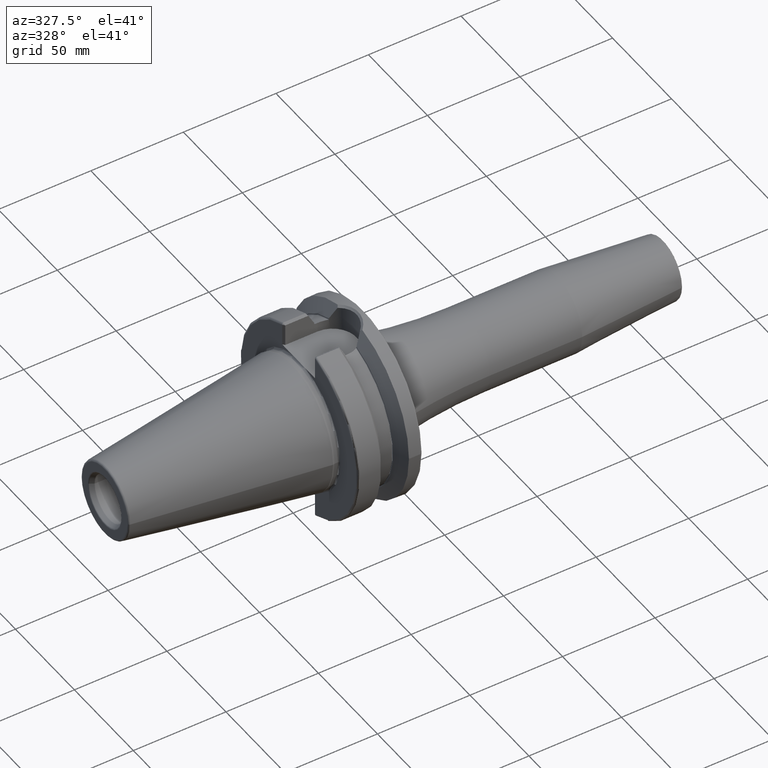
[diagram: clean part render]
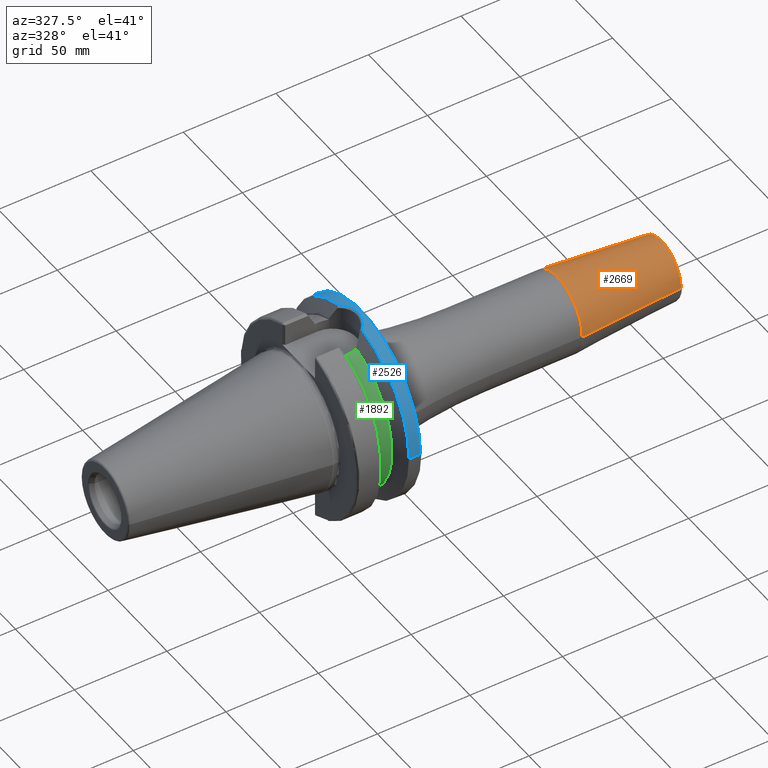
[diagram: same view with three faces highlighted in distinct colors, each labeled with its STEP entity id]
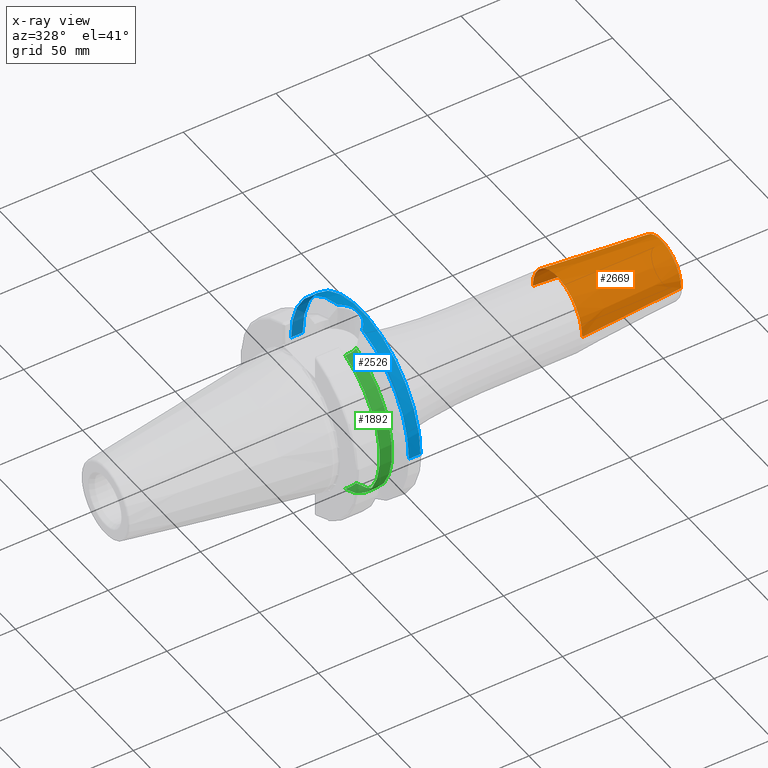
[diagram: x-ray of the same camera — body ghosted, the three highlighted faces saturated]
A machine part, auxiliary view with three faces highlighted in distinct colors.
The next image is the same camera in x-ray (body ghosted, the three faces saturated) — at least one of them is partly hidden behind the body in this view.
Their STEP definitions:

[orange] entity #2669 — the highlighted conical surface has half-angle 4.5 deg.
#897=CARTESIAN_POINT('',(1.428220786872E2,0.E0,0.E0));
#898=DIRECTION('',(1.E0,0.E0,0.E0));
#899=DIRECTION('',(0.E0,1.E0,0.E0));
#900=AXIS2_PLACEMENT_3D('',#897,#898,#899);
#902=CARTESIAN_POINT('',(1.990784590957E2,0.E0,0.E0));
#903=DIRECTION('',(-1.E0,0.E0,0.E0));
#904=DIRECTION('',(0.E0,-1.E0,0.E0));
#905=AXIS2_PLACEMENT_3D('',#902,#903,#904);
#922=DIRECTION('',(-9.969173337331E-1,7.845909572785E-2,3.371674713567E-14));
#923=VECTOR('',#922,5.643033630266E1);
#924=CARTESIAN_POINT('',(1.990784590957E2,1.657252684207E1,
-1.900075621619E-12));
#925=LINE('',#924,#923);
#926=DIRECTION('',(-9.969173337331E-1,-7.845909572785E-2,-3.370775574324E-14));
#927=VECTOR('',#926,5.643033630266E1);
#928=CARTESIAN_POINT('',(1.990784590957E2,-1.657252684207E1,
1.899568234321E-12));
#929=LINE('',#928,#927);
#1411=CARTESIAN_POINT('',(1.428220786872E2,2.1E1,0.E0));
#1412=CARTESIAN_POINT('',(1.428220786872E2,-2.1E1,0.E0));
#1413=VERTEX_POINT('',#1411);
#1414=VERTEX_POINT('',#1412);
#1423=CARTESIAN_POINT('',(1.990784590957E2,1.657252684207E1,0.E0));
#1424=CARTESIAN_POINT('',(1.990784590957E2,-1.657252684207E1,0.E0));
#1425=VERTEX_POINT('',#1423);
#1426=VERTEX_POINT('',#1424);
#2655=CARTESIAN_POINT('',(1.709502688915E2,0.E0,0.E0));
#2656=DIRECTION('',(-1.E0,0.E0,0.E0));
#2657=DIRECTION('',(0.E0,1.E0,0.E0));
#2658=AXIS2_PLACEMENT_3D('',#2655,#2656,#2657);
#2659=CONICAL_SURFACE('',#2658,1.878626342104E1,4.5E0);
#2661=ORIENTED_EDGE('',*,*,#2660,.F.);
#2663=ORIENTED_EDGE('',*,*,#2662,.T.);
#2664=ORIENTED_EDGE('',*,*,#2649,.F.);
#2666=ORIENTED_EDGE('',*,*,#2665,.F.);
#2667=EDGE_LOOP('',(#2661,#2663,#2664,#2666));
#2668=FACE_OUTER_BOUND('',#2667,.F.);
#2669=ADVANCED_FACE('',(#2668),#2659,.T.);
#901=CIRCLE('',#900,2.1E1);
#906=CIRCLE('',#905,1.657252684207E1);
#2649=EDGE_CURVE('',#1413,#1414,#901,.T.);
#2660=EDGE_CURVE('',#1426,#1425,#906,.T.);
#2662=EDGE_CURVE('',#1426,#1414,#929,.T.);
#2665=EDGE_CURVE('',#1425,#1413,#925,.T.);

[blue] entity #2526 — the highlighted cylindrical surface (partial cylindrical patch) has radius 49.9875 mm, axis along (1, 0, 0).
#250=DIRECTION('',(-1.E0,0.E0,0.E0));
#251=VECTOR('',#250,6.269331763825E0);
#252=CARTESIAN_POINT('',(3.7E1,-4.99875E1,0.E0));
#253=LINE('',#252,#251);
#259=DIRECTION('',(-1.E0,0.E0,0.E0));
#260=VECTOR('',#259,6.269331763825E0);
#261=CARTESIAN_POINT('',(3.7E1,4.99875E1,0.E0));
#262=LINE('',#261,#260);
#782=CARTESIAN_POINT('',(3.073066823617E1,0.E0,0.E0));
#783=DIRECTION('',(1.E0,0.E0,0.E0));
#784=DIRECTION('',(0.E0,1.E0,0.E0));
#785=AXIS2_PLACEMENT_3D('',#782,#783,#784);
#787=CARTESIAN_POINT('',(3.7E1,0.E0,0.E0));
#788=DIRECTION('',(1.E0,0.E0,0.E0));
#789=DIRECTION('',(0.E0,1.E0,0.E0));
#790=AXIS2_PLACEMENT_3D('',#787,#788,#789);
#792=CARTESIAN_POINT('',(3.073066823617E1,0.E0,0.E0));
#793=DIRECTION('',(1.E0,0.E0,0.E0));
#794=DIRECTION('',(0.E0,-2.094051574285E-1,9.778289625708E-1));
#795=AXIS2_PLACEMENT_3D('',#792,#793,#794);
#797=CARTESIAN_POINT('',(3.073066823617E1,1.046765017837E1,4.887922315251E1));
#798=CARTESIAN_POINT('',(3.093824742254E1,1.027394156657E1,4.892071033431E1));
#799=CARTESIAN_POINT('',(3.161047010606E1,9.607576099682E0,4.905940702404E1));
#800=CARTESIAN_POINT('',(3.263517600486E1,8.361597131920E0,4.929233531601E1));
#801=CARTESIAN_POINT('',(3.366872655698E1,6.670162125591E0,4.955104267859E1));
#802=CARTESIAN_POINT('',(3.445683207094E1,4.858888640768E0,4.976248055972E1));
#803=CARTESIAN_POINT('',(3.498881883781E1,2.963029384908E0,4.991203919913E1));
#804=CARTESIAN_POINT('',(3.525852360168E1,1.017396108424E0,4.998994610559E1));
#805=CARTESIAN_POINT('',(3.526344205362E1,-9.445244441774E-1,4.999137984430E1));
#806=CARTESIAN_POINT('',(3.500362395847E1,-2.891033001447E0,4.991627963537E1));
#807=CARTESIAN_POINT('',(3.448138663547E1,-4.789289725446E0,4.976926316974E1));
#808=CARTESIAN_POINT('',(3.370271475997E1,-6.604336733999E0,4.955990954998E1));
#809=CARTESIAN_POINT('',(3.267803854162E1,-8.300983390707E0,4.930264159969E1));
#810=CARTESIAN_POINT('',(3.164433381328E1,-9.571446946705E0,4.906668367984E1));
#811=CARTESIAN_POINT('',(3.095620205386E1,-1.025716232725E1,4.892430305409E1));
#812=CARTESIAN_POINT('',(3.073066823617E1,-1.046764030696E1,4.887922526651E1));
#1244=CARTESIAN_POINT('',(3.073066823617E1,4.99875E1,0.E0));
#1245=CARTESIAN_POINT('',(3.073066823617E1,1.046765017837E1,4.887922315251E1));
#1246=VERTEX_POINT('',#1244);
#1247=VERTEX_POINT('',#1245);
#1248=CARTESIAN_POINT('',(3.073066823617E1,-4.99875E1,-1.224340637448E-14));
#1250=VERTEX_POINT('',#1248);
#1252=CARTESIAN_POINT('',(3.7E1,4.99875E1,0.E0));
#1253=VERTEX_POINT('',#1252);
#1254=CARTESIAN_POINT('',(3.7E1,-4.99875E1,0.E0));
#1255=VERTEX_POINT('',#1254);
#1256=CARTESIAN_POINT('',(3.073066823617E1,-1.046764030696E1,4.887922526651E1));
#1257=VERTEX_POINT('',#1256);
#2511=CARTESIAN_POINT('',(-1.0879E2,0.E0,0.E0));
#2512=DIRECTION('',(1.E0,0.E0,0.E0));
#2513=DIRECTION('',(0.E0,-1.E0,0.E0));
#2514=AXIS2_PLACEMENT_3D('',#2511,#2512,#2513);
#2515=CYLINDRICAL_SURFACE('',#2514,4.99875E1);
#2516=ORIENTED_EDGE('',*,*,#2413,.F.);
#2517=ORIENTED_EDGE('',*,*,#1783,.F.);
#2519=ORIENTED_EDGE('',*,*,#2518,.T.);
#2520=ORIENTED_EDGE('',*,*,#1779,.T.);
#2521=ORIENTED_EDGE('',*,*,#2426,.F.);
#2523=ORIENTED_EDGE('',*,*,#2522,.F.);
#2524=EDGE_LOOP('',(#2516,#2517,#2519,#2520,#2521,#2523));
#2525=FACE_OUTER_BOUND('',#2524,.F.);
#2526=ADVANCED_FACE('',(#2525),#2515,.T.);
#786=CIRCLE('',#785,4.99875E1);
#791=CIRCLE('',#790,4.99875E1);
#796=CIRCLE('',#795,4.99875E1);
#813=B_SPLINE_CURVE_WITH_KNOTS('',3,(#797,#798,#799,#800,#801,#802,#803,#804,
#805,#806,#807,#808,#809,#810,#811,#812),.UNSPECIFIED.,.F.,.F.,(4,1,1,1,1,1,1,1,
1,1,1,1,1,4),(0.E0,3.613843176766E-2,1.201923969829E-1,2.042463621981E-1,
2.883003274134E-1,3.723542926286E-1,4.564082578438E-1,5.404622230591E-1,
6.245161882743E-1,7.085701534895E-1,7.926241187048E-1,8.766780839200E-1,
9.607320491352E-1,1.E0),.UNSPECIFIED.);
#1779=EDGE_CURVE('',#1255,#1250,#253,.T.);
#1783=EDGE_CURVE('',#1253,#1246,#262,.T.);
#2413=EDGE_CURVE('',#1246,#1247,#786,.T.);
#2426=EDGE_CURVE('',#1257,#1250,#796,.T.);
#2518=EDGE_CURVE('',#1253,#1255,#791,.T.);
#2522=EDGE_CURVE('',#1247,#1257,#813,.T.);

[green] entity #1892 — the highlighted cylindrical surface (partial cylindrical patch) has radius 42.375 mm, axis along (1, 0, 0).
#308=DIRECTION('',(1.E0,0.E0,0.E0));
#309=VECTOR('',#308,1.435E0);
#310=CARTESIAN_POINT('',(1.99125E1,-1.29025E1,-4.036293000700E1));
#311=LINE('',#310,#309);
#368=CARTESIAN_POINT('',(2.64875E1,-1.183447955129E1,-4.068888937720E1));
#369=CARTESIAN_POINT('',(2.593767013313E1,-1.207328392824E1,-4.061943244291E1));
#370=CARTESIAN_POINT('',(2.482251458205E1,-1.246756636174E1,-4.050035379603E1));
#371=CARTESIAN_POINT('',(2.309259987910E1,-1.282394305606E1,-4.038817378858E1));
#372=CARTESIAN_POINT('',(2.193211835188E1,-1.29025E1,-4.036293000700E1));
#373=CARTESIAN_POINT('',(2.13475E1,-1.29025E1,-4.036293000700E1));
#375=CARTESIAN_POINT('',(1.99125E1,0.E0,0.E0));
#376=DIRECTION('',(-1.E0,0.E0,0.E0));
#377=DIRECTION('',(0.E0,-3.044837758112E-1,-9.525175222891E-1));
#378=AXIS2_PLACEMENT_3D('',#375,#376,#377);
#380=CARTESIAN_POINT('',(2.13475E1,-1.29025E1,4.036293000700E1));
#381=CARTESIAN_POINT('',(2.193211835188E1,-1.29025E1,4.036293000700E1));
#382=CARTESIAN_POINT('',(2.309259987910E1,-1.282394305606E1,4.038817378858E1));
#383=CARTESIAN_POINT('',(2.482251458205E1,-1.246756636174E1,4.050035379603E1));
#384=CARTESIAN_POINT('',(2.593767013313E1,-1.207328392824E1,4.061943244291E1));
#385=CARTESIAN_POINT('',(2.64875E1,-1.183447955129E1,4.068888937720E1));
#463=CARTESIAN_POINT('',(2.64875E1,0.E0,0.E0));
#464=DIRECTION('',(-1.E0,0.E0,0.E0));
#465=DIRECTION('',(0.E0,-2.792797534229E-1,-9.602097788130E-1));
#466=AXIS2_PLACEMENT_3D('',#463,#464,#465);
#548=DIRECTION('',(1.E0,0.E0,0.E0));
#549=VECTOR('',#548,1.435E0);
#550=CARTESIAN_POINT('',(1.99125E1,-1.29025E1,4.036293000700E1));
#551=LINE('',#550,#549);
#1204=CARTESIAN_POINT('',(1.99125E1,-1.29025E1,-4.036293000700E1));
#1205=CARTESIAN_POINT('',(1.99125E1,-1.29025E1,4.036293000700E1));
#1206=VERTEX_POINT('',#1204);
#1207=VERTEX_POINT('',#1205);
#1216=CARTESIAN_POINT('',(2.64875E1,-1.183447955129E1,-4.068888937720E1));
#1217=CARTESIAN_POINT('',(2.64875E1,-1.183447955129E1,4.068888937720E1));
#1218=VERTEX_POINT('',#1216);
#1219=VERTEX_POINT('',#1217);
#1345=CARTESIAN_POINT('',(2.13475E1,-1.29025E1,4.036293000700E1));
#1346=VERTEX_POINT('',#1345);
#1353=CARTESIAN_POINT('',(2.13475E1,-1.29025E1,-4.036293000700E1));
#1354=VERTEX_POINT('',#1353);
#1875=CARTESIAN_POINT('',(1.491626494021E1,0.E0,0.E0));
#1876=DIRECTION('',(1.E0,0.E0,0.E0));
#1877=DIRECTION('',(0.E0,-1.E0,0.E0));
#1878=AXIS2_PLACEMENT_3D('',#1875,#1876,#1877);
#1879=CYLINDRICAL_SURFACE('',#1878,4.2375E1);
#1881=ORIENTED_EDGE('',*,*,#1880,.T.);
#1882=ORIENTED_EDGE('',*,*,#1814,.F.);
#1883=ORIENTED_EDGE('',*,*,#1848,.T.);
#1885=ORIENTED_EDGE('',*,*,#1884,.T.);
#1887=ORIENTED_EDGE('',*,*,#1886,.T.);
#1889=ORIENTED_EDGE('',*,*,#1888,.F.);
#1890=EDGE_LOOP('',(#1881,#1882,#1883,#1885,#1887,#1889));
#1891=FACE_OUTER_BOUND('',#1890,.F.);
#1892=ADVANCED_FACE('',(#1891),#1879,.T.);
#374=B_SPLINE_CURVE_WITH_KNOTS('',3,(#368,#369,#370,#371,#372,#373),
.UNSPECIFIED.,.F.,.F.,(4,1,1,4),(0.E0,3.333333333333E-1,6.666666666667E-1,1.E0),
.UNSPECIFIED.);
#379=CIRCLE('',#378,4.2375E1);
#386=B_SPLINE_CURVE_WITH_KNOTS('',3,(#380,#381,#382,#383,#384,#385),
.UNSPECIFIED.,.F.,.F.,(4,1,1,4),(0.E0,3.333333333333E-1,6.666666666667E-1,1.E0),
.UNSPECIFIED.);
#467=CIRCLE('',#466,4.2375E1);
#1814=EDGE_CURVE('',#1206,#1354,#311,.T.);
#1848=EDGE_CURVE('',#1206,#1207,#379,.T.);
#1880=EDGE_CURVE('',#1218,#1354,#374,.T.);
#1884=EDGE_CURVE('',#1207,#1346,#551,.T.);
#1886=EDGE_CURVE('',#1346,#1219,#386,.T.);
#1888=EDGE_CURVE('',#1218,#1219,#467,.T.);